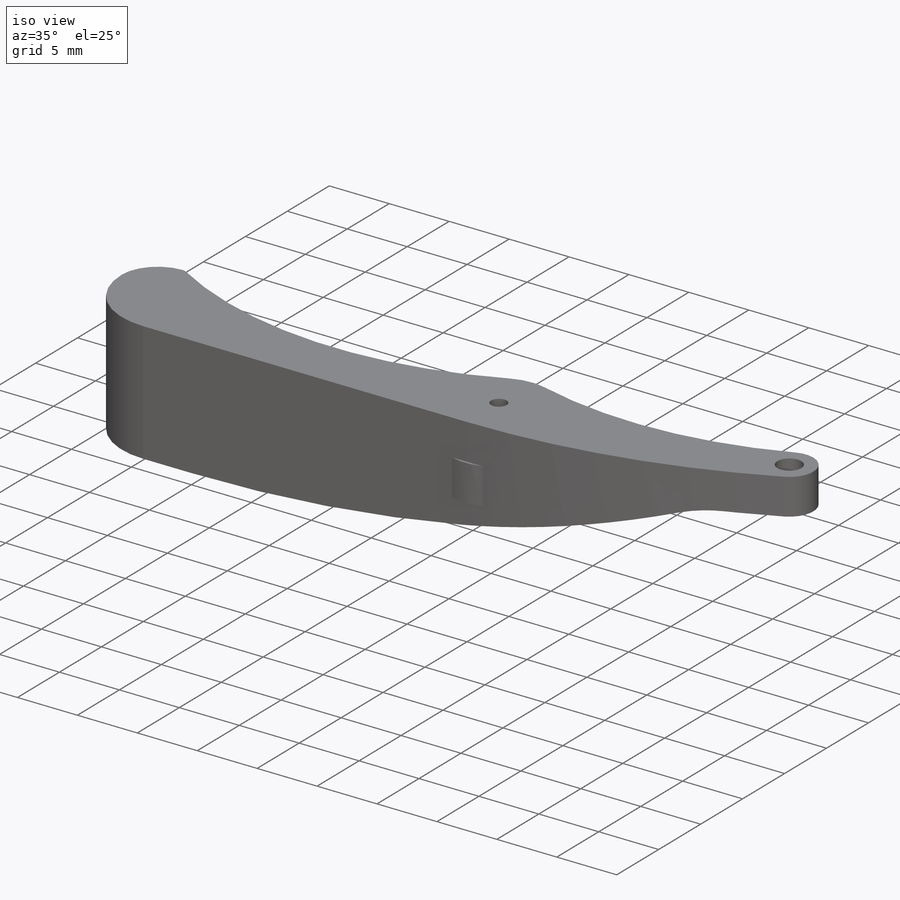
[diagram: iso view]
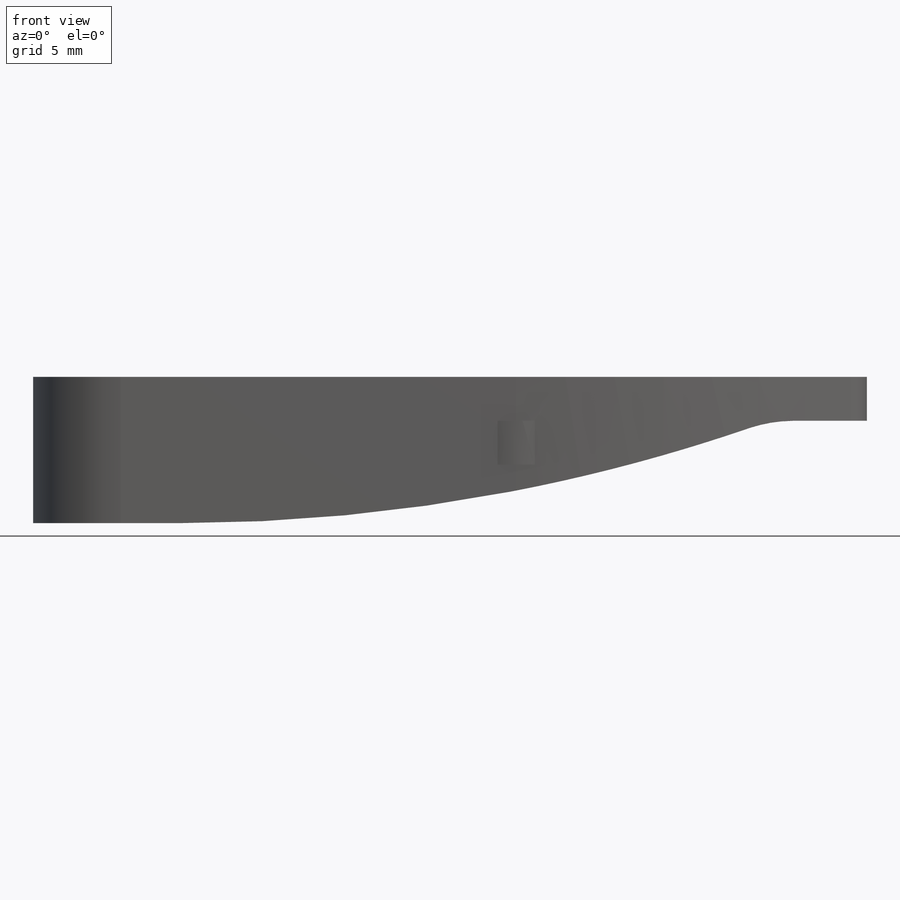
[diagram: front view]
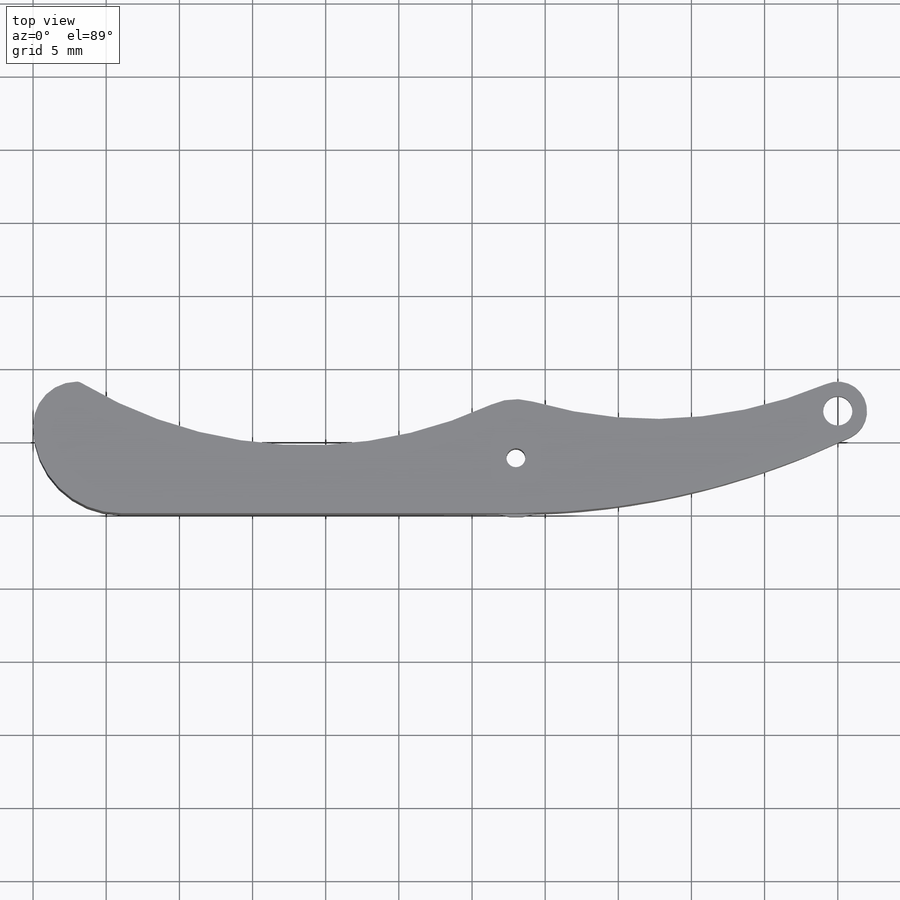
[diagram: top view]
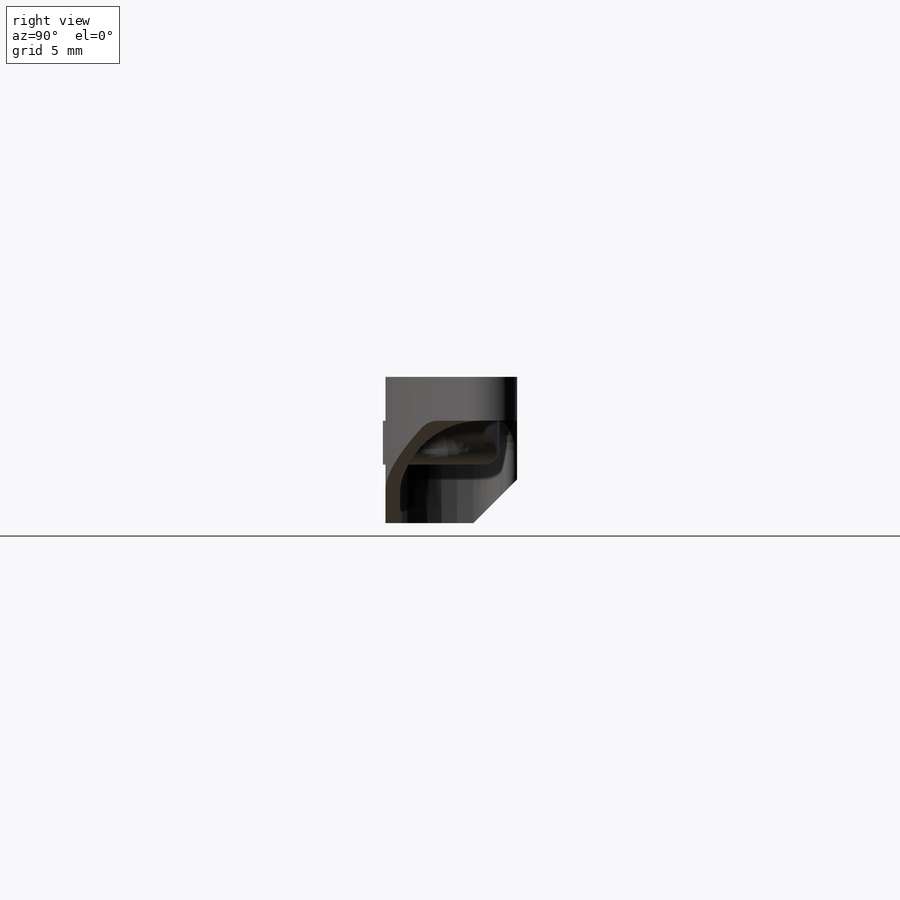
[diagram: right view]
SOLIDWORKS PART (.sldprt)
format: sldprt  version: not decoded by parser v0  size: 524,288 bytes
history: native  units: mm
features: sketch x17, cut_extrude x9, extrude x8, fillet x4, plane x3, mirror x2, material x1, delete_body x1 (+8 scaffold rows collapsed)
feature tree (53):
  scaffold x8  (default folders/planes/origin — collapsed)
  material  "ABS"
  plane  "Ebene vorne"
  plane  "Ebene oben"
  plane  "Ebene rechts"
  sketch  "Skizze1"  dims[D1=9.0mm D2=16.0mm]
  extrude  "Linear austragen1"  Depth=60mm
  sketch  "Skizze3"  dims[D1=6.0mm D2=1.0mm]
  cut_extrude  "Schnitt-Linear austragen1"  Depth=7mm
  sketch  "Skizze4"  dims[D1=1.3mm D2=2.0mm D3=33.0mm D4=3.8mm D5=55.0mm D6=7.0mm]
  cut_extrude  "Schnitt-Linear austragen2"  [1 undecoded]
  sketch  "Skizze5"  dims[D1=4.0mm D2=8.0mm D3=60.0mm D4=60.0mm]
  cut_extrude  "Schnitt-Linear austragen3"  Depth=3mm
  sketch  "Skizze6"  dims[D1=1.0mm]
  extrude  "Linear austragen2"  [1 undecoded]
  sketch  "Skizze7"
  extrude  "Linear austragen4"  Depth=3mm
  fillet  "Verrundung1"  Radius=2mm
  fillet  "Verrundung2"  Radius=2mm
  fillet  "Verrundung3"  Radius=1mm
  sketch  "Skizze8"  dims[D3=120.0mm D4=69.5mm D1=52.0mm D2=10.0mm]
  cut_extrude  "Schnitt-Linear austragen5"  [1 undecoded]
  fillet  "Verrundung4"  Radius=0.2mm
  cut_extrude  "Schnitt-Linear austragen6"  [1 undecoded]
  sketch  "Skizze4<2>"
  sketch  "Skizze10"
  extrude  "Linear austragen5"  [1 undecoded]
  sketch  "Skizze11"
  extrude  "Linear austragen6"  [1 undecoded]
  sketch  "Skizze14"  dims[c1.D2=0.5mm c1.D3=0.5mm c1.D4=10.0mm c1.D5=60.0mm c2.D2=0.5mm c2.D1=0.0mm]
  extrude  "Linear austragen9"  Depth=2mm
  sketch  "Skizze16"  dims[D2=3.0mm D3=3.0mm D1=0.0mm]
  extrude  "Linear austragen10"  [1 undecoded]
  sketch  "Skizze19"  dims[c1.D2=2.0mm c1.D1=3.0mm c2.D2=3.0mm c2.D3=3.0mm c2.D4=3.0mm]
  extrude  "Linear austragen11"  [1 undecoded]
  sketch  "Skizze17"
  cut_extrude  "Schnitt-Linear austragen8"  [1 undecoded]
  sketch  "Skizze9"  dims[D1=0.0mm]
  cut_extrude  "Schnitt-Linear austragen7"  Depth=1mm
  sketch  "Skizze21"  dims[c1.D1=3.0mm c2.D1=45.0deg c2.D2=9.0mm]
  cut_extrude  "Schnitt-Linear austragen14"  [1 undecoded]
  sketch  "Skizze20"  dims[D1=0.0mm]
  cut_extrude  "Schnitt-Linear austragen12"  Depth=3mm
  mirror  "Spiegeln1"
  mirror  "Mirror1"
  delete_body  "Body-Delete1"
decode coverage: 23 of 41 modeling features carry decoded parameters
note: 10 parameter values undecoded
summary: no parameter record found for 10 features
note: suppression state not decoded; provenance and decode notes live in map.json
